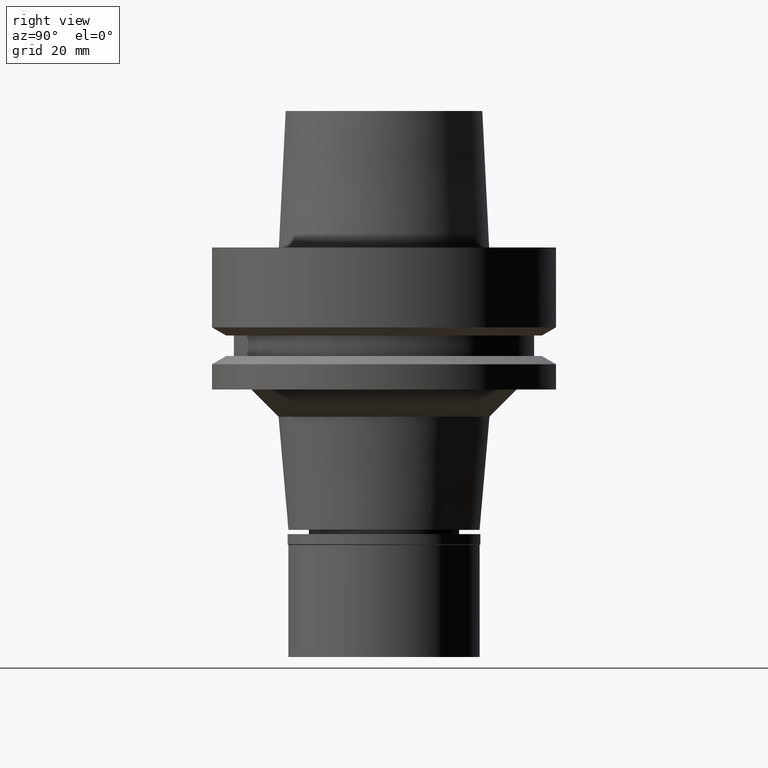
[diagram: clean part render]
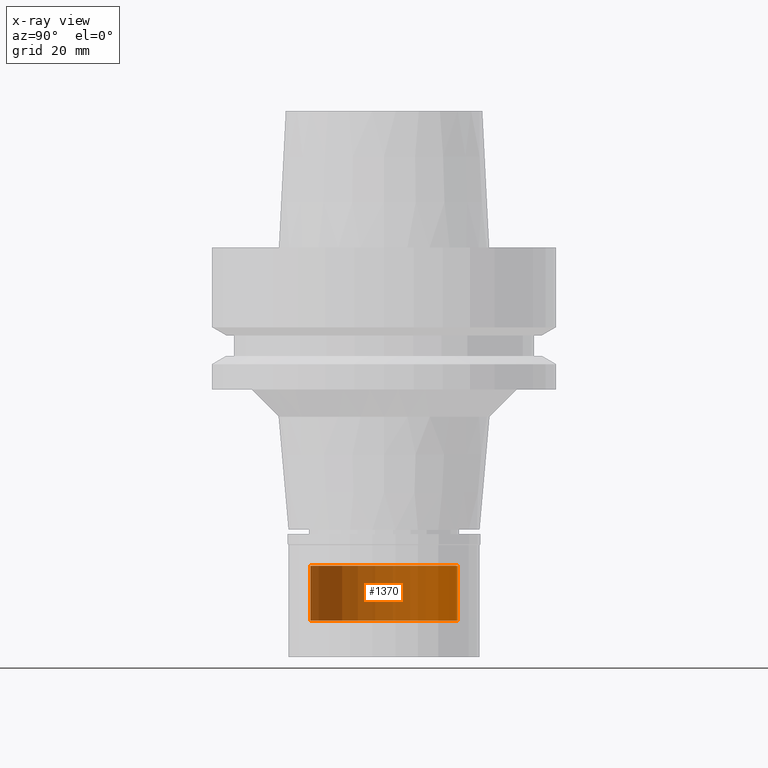
[diagram: x-ray — body ghosted, one internal face saturated and labeled with its STEP entity id]
A machine part, right view, then the same camera in x-ray: the body is ghosted and one INTERNAL B-rep face — a face not visible from any outside direction — is saturated and labeled: STEP entity #1370.
In plain terms, the highlighted cylindrical surface (partial cylindrical patch) has radius 13.5 mm, axis along (0, 0, 1).
Its self-contained STEP definition (entity closure, byte-faithful):
#13 = FACE_OUTER_BOUND ( 'NONE', #139, .T. ) ;
#17 = VERTEX_POINT ( 'NONE', #623 ) ;
#72 = DIRECTION ( 'NONE',  ( 0.0000000000000000000, 0.0000000000000000000, -1.000000000000000000 ) ) ;
#110 = ORIENTED_EDGE ( 'NONE', *, *, #419, .T. ) ;
#139 = EDGE_LOOP ( 'NONE', ( #1006, #2351, #173, #110 ) ) ;
#173 = ORIENTED_EDGE ( 'NONE', *, *, #2318, .T. ) ;
#254 = VECTOR ( 'NONE', #72, 1000.000000000000000 ) ;
#351 = AXIS2_PLACEMENT_3D ( 'NONE', #1325, #437, #2169 ) ;
#366 = VERTEX_POINT ( 'NONE', #504 ) ;
#419 = EDGE_CURVE ( 'NONE', #1164, #17, #1680, .T. ) ;
#437 = DIRECTION ( 'NONE',  ( 0.0000000000000000000, 0.0000000000000000000, 1.000000000000000000 ) ) ;
#476 = DIRECTION ( 'NONE',  ( 0.0000000000000000000, 1.000000000000000000, 0.0000000000000000000 ) ) ;
#504 = CARTESIAN_POINT ( 'NONE',  ( 0.0000000000000000000, -13.50000000000000000, -68.29999999999999716 ) ) ;
#623 = CARTESIAN_POINT ( 'NONE',  ( 0.0000000000000000000, 13.50000000000000000, -68.29999999999999716 ) ) ;
#727 = CARTESIAN_POINT ( 'NONE',  ( 0.0000000000000000000, -13.50000000000000000, -58.29999999999999716 ) ) ;
#751 = DIRECTION ( 'NONE',  ( 0.0000000000000000000, 0.0000000000000000000, -1.000000000000000000 ) ) ;
#837 = CARTESIAN_POINT ( 'NONE',  ( 0.0000000000000000000, 13.50000000000000000, -58.29999999999999716 ) ) ;
#886 = VECTOR ( 'NONE', #751, 1000.000000000000000 ) ;
#1006 = ORIENTED_EDGE ( 'NONE', *, *, #2018, .T. ) ;
#1085 = DIRECTION ( 'NONE',  ( 0.0000000000000000000, 0.0000000000000000000, 1.000000000000000000 ) ) ;
#1164 = VERTEX_POINT ( 'NONE', #837 ) ;
#1325 = CARTESIAN_POINT ( 'NONE',  ( 0.0000000000000000000, 0.0000000000000000000, -68.29999999999999716 ) ) ;
#1370 = ADVANCED_FACE ( 'NONE', ( #13 ), #2160, .T. ) ;
#1376 = EDGE_CURVE ( 'NONE', #2043, #366, #2180, .T. ) ;
#1425 = DIRECTION ( 'NONE',  ( 0.0000000000000000000, 0.0000000000000000000, -1.000000000000000000 ) ) ;
#1680 = LINE ( 'NONE', #2519, #886 ) ;
#1757 = CIRCLE ( 'NONE', #2426, 13.50000000000000000 ) ;
#1956 = CARTESIAN_POINT ( 'NONE',  ( 0.0000000000000000000, -13.50000000000000000, -58.29999999999999716 ) ) ;
#2018 = EDGE_CURVE ( 'NONE', #17, #366, #2475, .T. ) ;
#2043 = VERTEX_POINT ( 'NONE', #727 ) ;
#2044 = DIRECTION ( 'NONE',  ( 0.0000000000000000000, -1.000000000000000000, 0.0000000000000000000 ) ) ;
#2160 = CYLINDRICAL_SURFACE ( 'NONE', #2376, 13.50000000000000000 ) ;
#2169 = DIRECTION ( 'NONE',  ( 0.0000000000000000000, 1.000000000000000000, 0.0000000000000000000 ) ) ;
#2180 = LINE ( 'NONE', #1956, #254 ) ;
#2267 = CARTESIAN_POINT ( 'NONE',  ( 0.0000000000000000000, 0.0000000000000000000, -58.29999999999999716 ) ) ;
#2318 = EDGE_CURVE ( 'NONE', #2043, #1164, #1757, .T. ) ;
#2351 = ORIENTED_EDGE ( 'NONE', *, *, #1376, .F. ) ;
#2376 = AXIS2_PLACEMENT_3D ( 'NONE', #2590, #1085, #476 ) ;
#2426 = AXIS2_PLACEMENT_3D ( 'NONE', #2267, #1425, #2044 ) ;
#2475 = CIRCLE ( 'NONE', #351, 13.50000000000000000 ) ;
#2519 = CARTESIAN_POINT ( 'NONE',  ( 0.0000000000000000000, 13.50000000000000000, -58.29999999999999716 ) ) ;
#2590 = CARTESIAN_POINT ( 'NONE',  ( 0.0000000000000000000, 0.0000000000000000000, -72.96500000000000341 ) ) ;